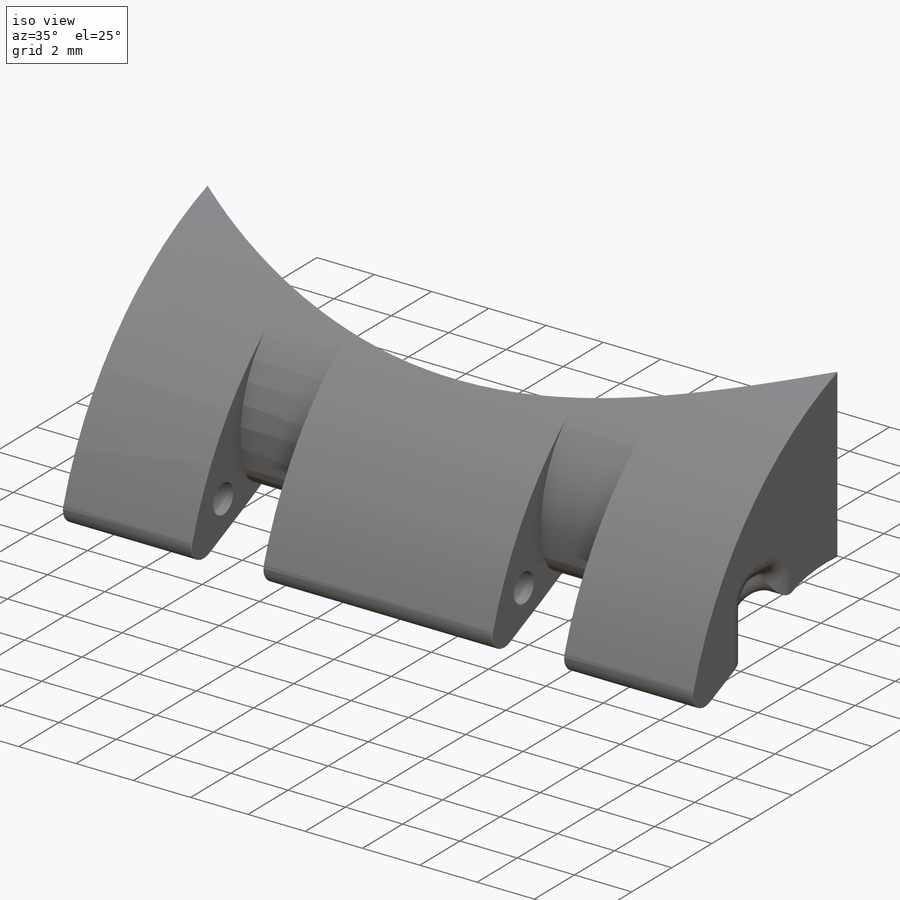
[diagram: iso view]
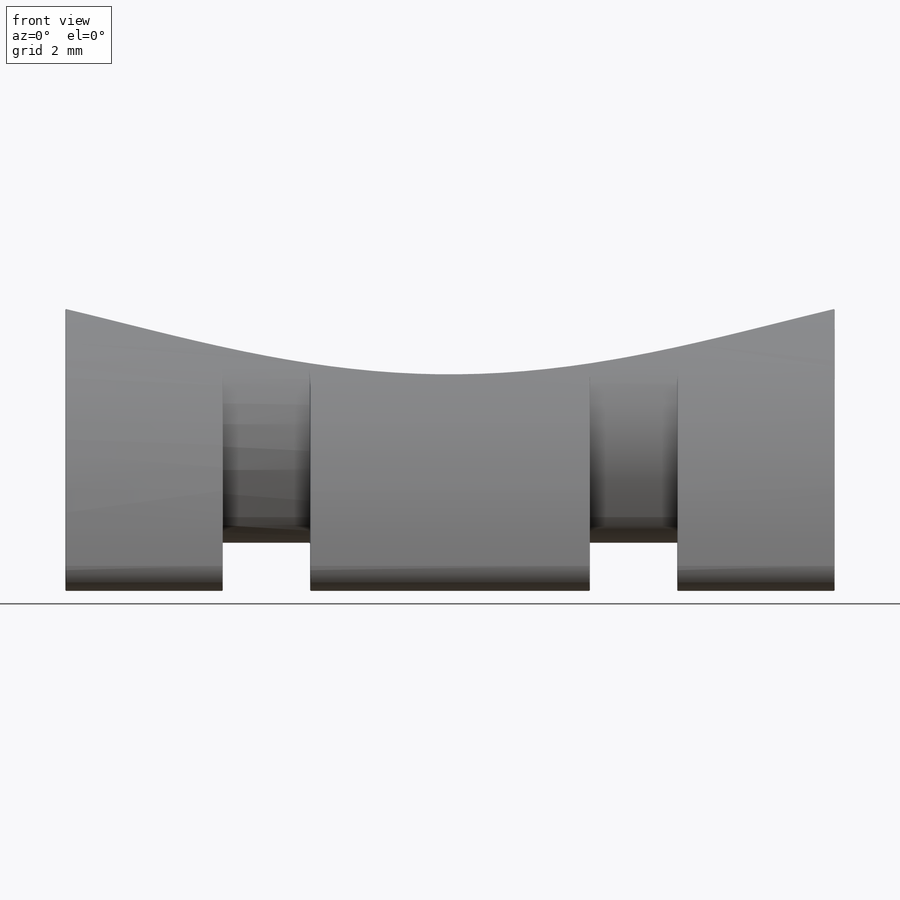
[diagram: front view]
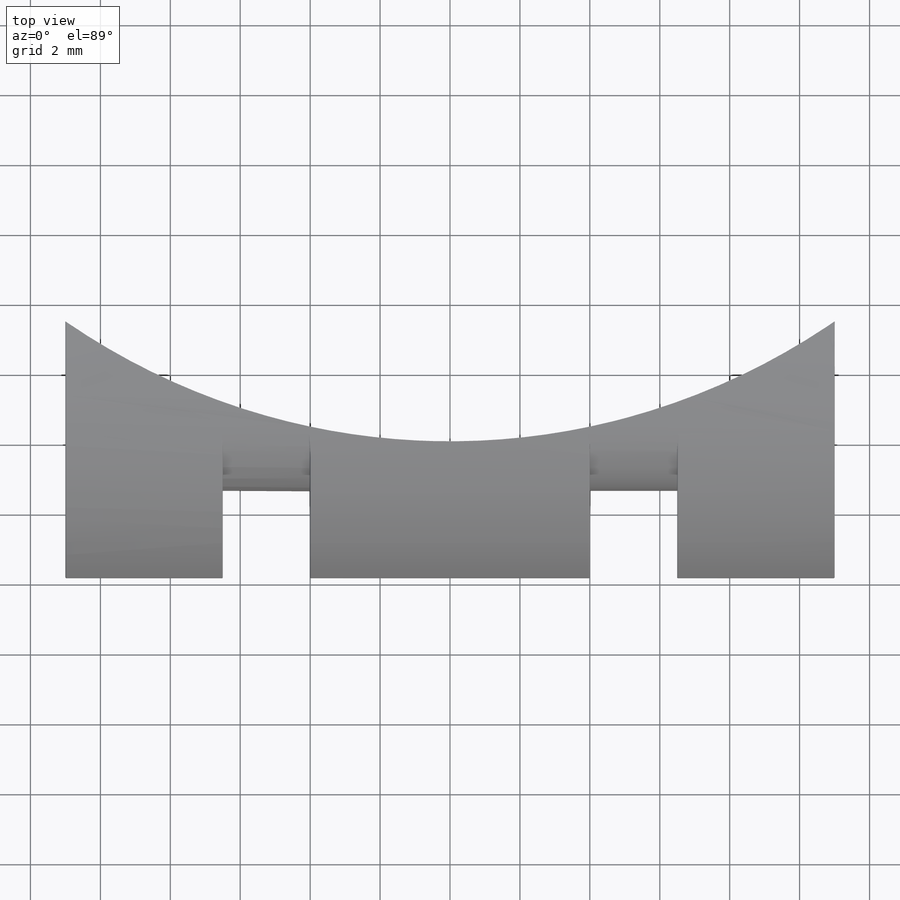
[diagram: top view]
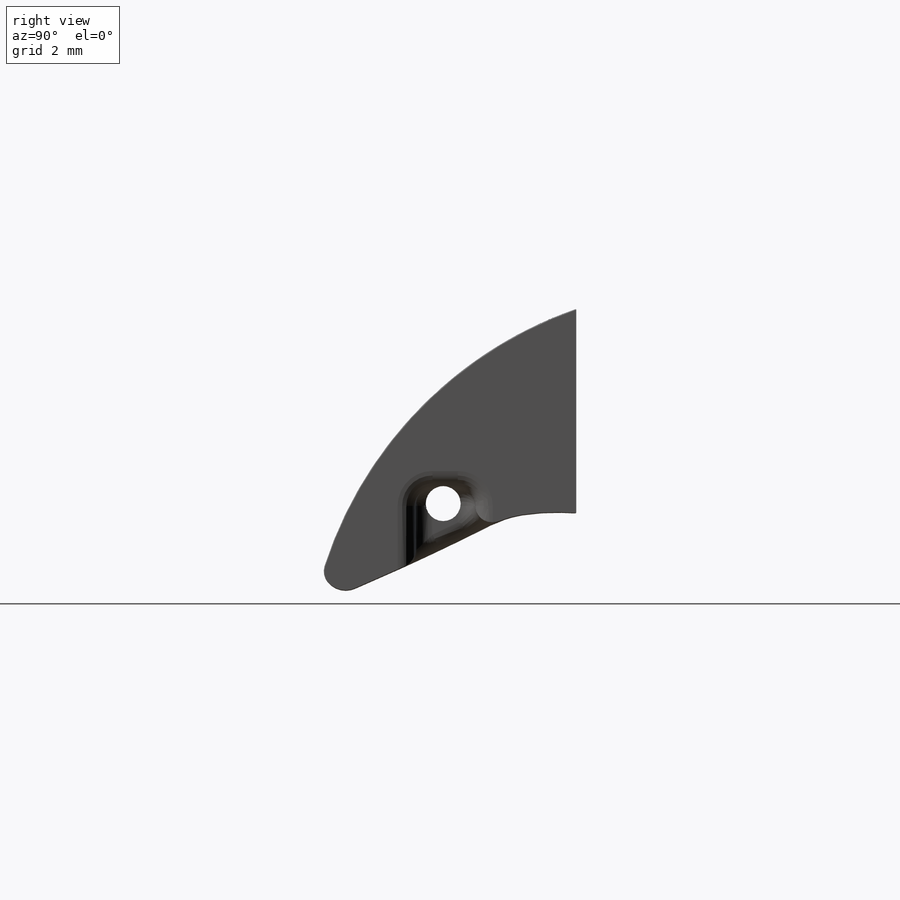
[diagram: right view]
SOLIDWORKS PART (.sldprt)
format: sldprt  version: not decoded by parser v0  size: 627,712 bytes
history: native  units: mm
features: fillet x8, sketch x6, cut_extrude x5, mirror x2, material x1, extrude x1 (+11 scaffold rows collapsed)
feature tree (34):
  scaffold x11  (default folders/planes/origin — collapsed)
  material  "Material <not specified>"
  sketch  "Sketch1"
  extrude  "Boss-Extrude1"  Depth=22mm
  sketch  "Sketch2"  dims[D1=39.0mm D2=21.5mm]
  cut_extrude  "Cut-Extrude1"  Depth=22mm
  fillet  "Fillet1"  Radius=0.5mm
  fillet  "Fillet2"  Radius=3mm
  sketch  "Sketch3"  dims[D1=1.0mm]
  cut_extrude  "Cut-Extrude2"  Depth=30mm
  sketch  "Sketch4"
  cut_extrude  "Cut-Extrude3"  Depth=2.5mm
  fillet  "Fillet3"  Radius=4mm
  mirror  "Mirror1"
  sketch  "Sketch5"  dims[D1=1.0mm]
  cut_extrude  "Cut-Extrude4"  Depth=4mm
  fillet  "Fillet4"  Radius=1mm
  fillet  "Fillet6"  Radius=0.03mm
  sketch  "Sketch6"  dims[D1=1.0mm]
  cut_extrude  "Cut-Extrude5"  Depth=11.5mm
  fillet  "Fillet7"  Radius=0.5mm
  fillet  "Fillet8"  Radius=0.5mm
  mirror  "Mirror2"
  fillet  "Fillet9"  Radius=0.5mm
decode coverage: 18 of 22 modeling features carry decoded parameters
note: suppression state not decoded; provenance and decode notes live in map.json
